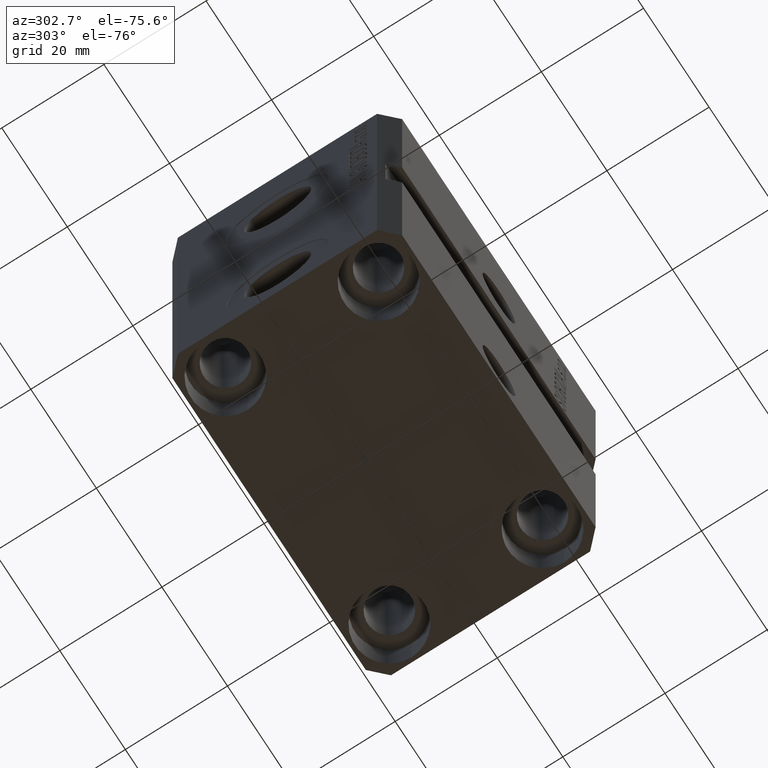
[diagram: clean part render]
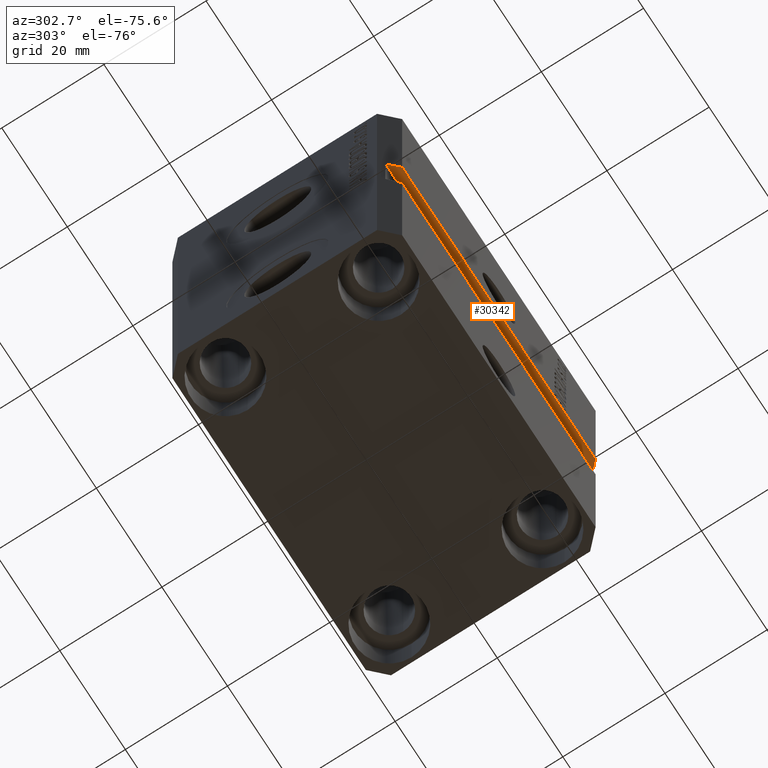
[diagram: same view with one face highlighted and labeled with its STEP entity id]
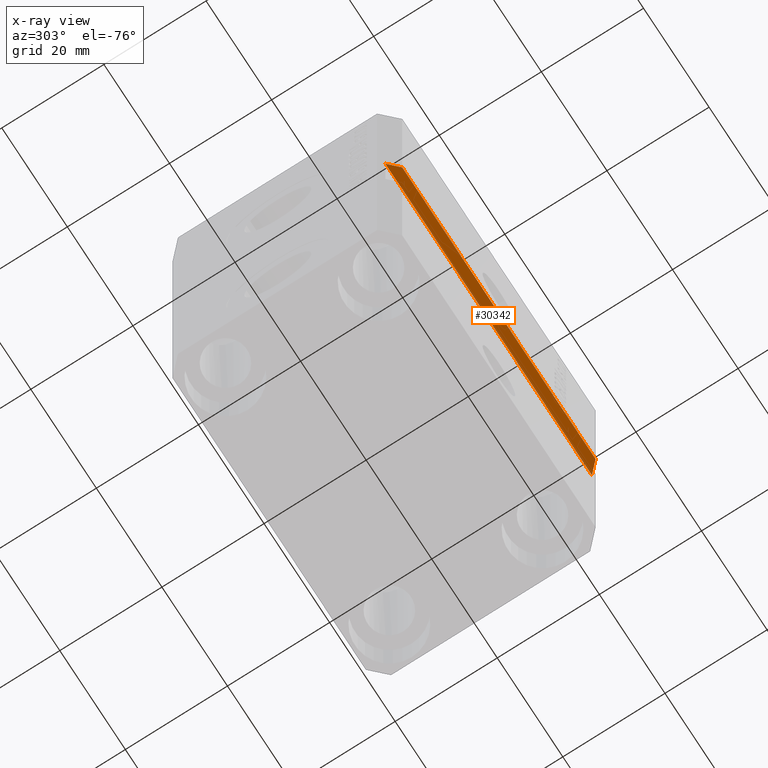
[diagram: x-ray of the same camera — body ghosted, the highlighted face saturated]
A machine part, auxiliary view. The second image highlights one B-rep face of the part: STEP entity #30342.
The next image is the same camera in x-ray: the body ghosted, the highlighted face saturated — about 11% of this face is hidden behind the body in this view.
In plain terms, the highlighted planar face has unit normal (0, 0, 1).
Its self-contained STEP definition (entity closure, byte-faithful):
#468 = ORIENTED_EDGE ( 'NONE', *, *, #43592, .F. ) ;
#3111 = ORIENTED_EDGE ( 'NONE', *, *, #43425, .T. ) ;
#3982 = CARTESIAN_POINT ( 'NONE',  ( 32.49999999999650413, -22.49999999999949196, -32.00000000000000711 ) ) ;
#7286 = CARTESIAN_POINT ( 'NONE',  ( -31.49999999999650413, -20.49999999999950262, -32.00000000000000000 ) ) ;
#7763 = VECTOR ( 'NONE', #27575, 1000.000000000000000 ) ;
#7806 = EDGE_LOOP ( 'NONE', ( #29453, #3111, #11760, #468 ) ) ;
#8333 = VERTEX_POINT ( 'NONE', #27780 ) ;
#10563 = CARTESIAN_POINT ( 'NONE',  ( -29.49999999999650058, -22.49999999999949907, -32.00000000000000000 ) ) ;
#11567 = VERTEX_POINT ( 'NONE', #30031 ) ;
#11760 = ORIENTED_EDGE ( 'NONE', *, *, #29745, .T. ) ;
#12698 = DIRECTION ( 'NONE',  ( -1.000000000000000000, -1.067522139062765303E-16, 1.067522139062765303E-16 ) ) ;
#13084 = PLANE ( 'NONE',  #21847 ) ;
#13855 = LINE ( 'NONE', #3982, #7763 ) ;
#13969 = CARTESIAN_POINT ( 'NONE',  ( 32.49999999999650413, -20.49999999999949196, -32.00000000000000711 ) ) ;
#14906 = VECTOR ( 'NONE', #37131, 1000.000000000000000 ) ;
#14965 = LINE ( 'NONE', #28897, #34775 ) ;
#18780 = DIRECTION ( 'NONE',  ( -0.7071067811865474617, 0.7071067811865474617, 7.548521435980497974E-17 ) ) ;
#20934 = DIRECTION ( 'NONE',  ( 1.000000000000000000, 0.000000000000000000, -1.067522139062765303E-16 ) ) ;
#21847 = AXIS2_PLACEMENT_3D ( 'NONE', #13969, #37589, #20934 ) ;
#24511 = VERTEX_POINT ( 'NONE', #10563 ) ;
#26630 = LINE ( 'NONE', #30665, #33573 ) ;
#27575 = DIRECTION ( 'NONE',  ( -1.000000000000000000, -1.067522139062765303E-16, 1.067522139062765303E-16 ) ) ;
#27780 = CARTESIAN_POINT ( 'NONE',  ( 29.49999999999650413, -22.49999999999949196, -32.00000000000000711 ) ) ;
#28897 = CARTESIAN_POINT ( 'NONE',  ( -32.49999999999650413, -19.49999999999950262, -32.00000000000000000 ) ) ;
#29453 = ORIENTED_EDGE ( 'NONE', *, *, #41816, .T. ) ;
#29745 = EDGE_CURVE ( 'NONE', #24511, #42765, #14965, .T. ) ;
#30031 = CARTESIAN_POINT ( 'NONE',  ( 31.49999999999651124, -20.49999999999949196, -32.00000000000000711 ) ) ;
#30170 = FACE_OUTER_BOUND ( 'NONE', #7806, .T. ) ;
#30342 = ADVANCED_FACE ( 'NONE', ( #30170 ), #13084, .F. ) ;
#30372 = CARTESIAN_POINT ( 'NONE',  ( 29.49999999999650768, -22.49999999999948841, -32.00000000000000711 ) ) ;
#30665 = CARTESIAN_POINT ( 'NONE',  ( 32.49999999999650413, -20.49999999999949196, -32.00000000000000711 ) ) ;
#33573 = VECTOR ( 'NONE', #12698, 1000.000000000000000 ) ;
#34411 = LINE ( 'NONE', #30372, #14906 ) ;
#34775 = VECTOR ( 'NONE', #18780, 1000.000000000000114 ) ;
#37131 = DIRECTION ( 'NONE',  ( -0.7071067811865483499, -0.7071067811865466846, 7.548521435980509068E-17 ) ) ;
#37589 = DIRECTION ( 'NONE',  ( 1.067522139062765303E-16, 1.255495400513475380E-32, 1.000000000000000000 ) ) ;
#41816 = EDGE_CURVE ( 'NONE', #11567, #8333, #34411, .T. ) ;
#42765 = VERTEX_POINT ( 'NONE', #7286 ) ;
#43425 = EDGE_CURVE ( 'NONE', #8333, #24511, #13855, .T. ) ;
#43592 = EDGE_CURVE ( 'NONE', #11567, #42765, #26630, .T. ) ;